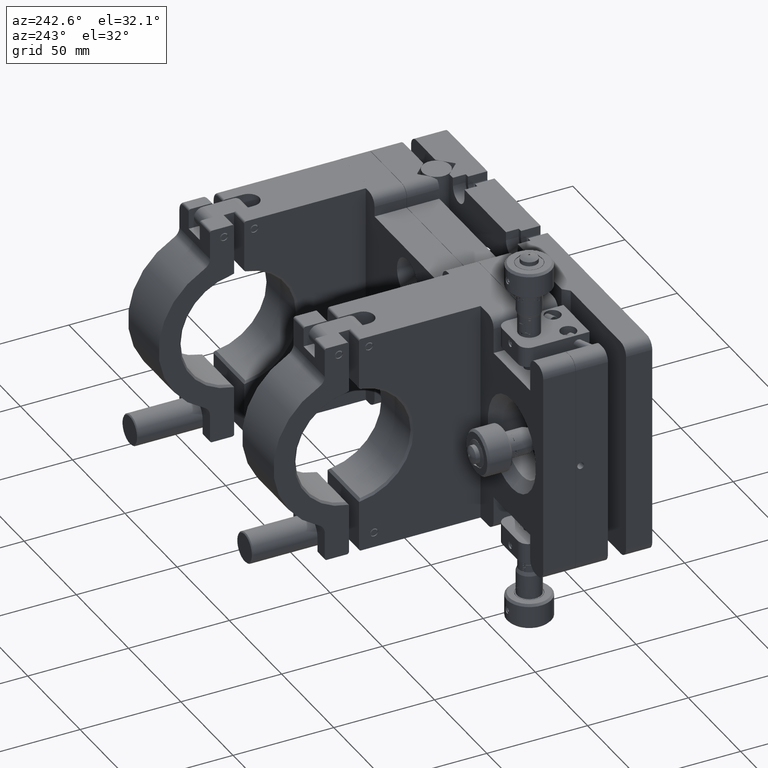
[diagram: clean part render]
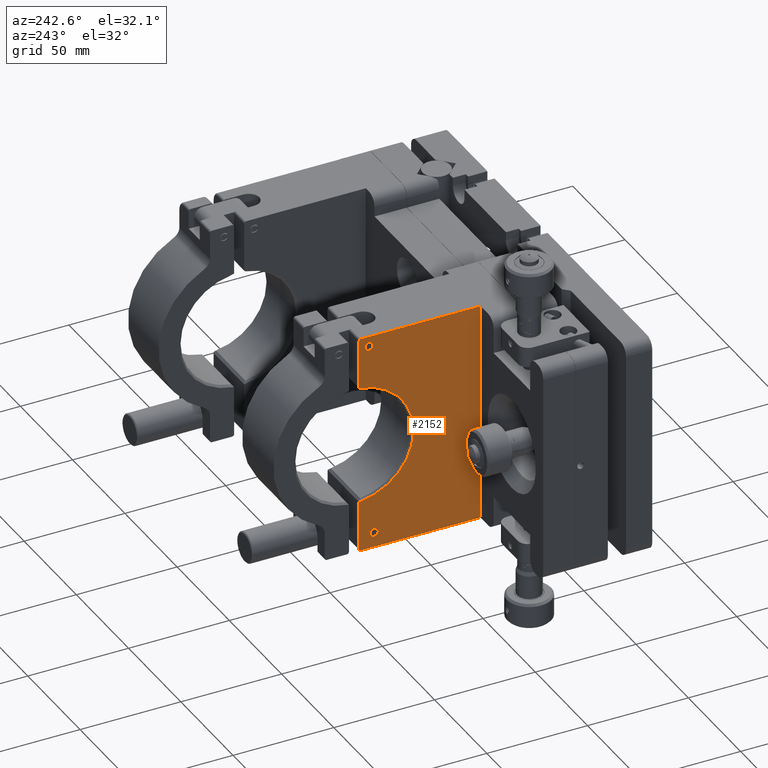
[diagram: same view with one face highlighted and labeled with its STEP entity id]
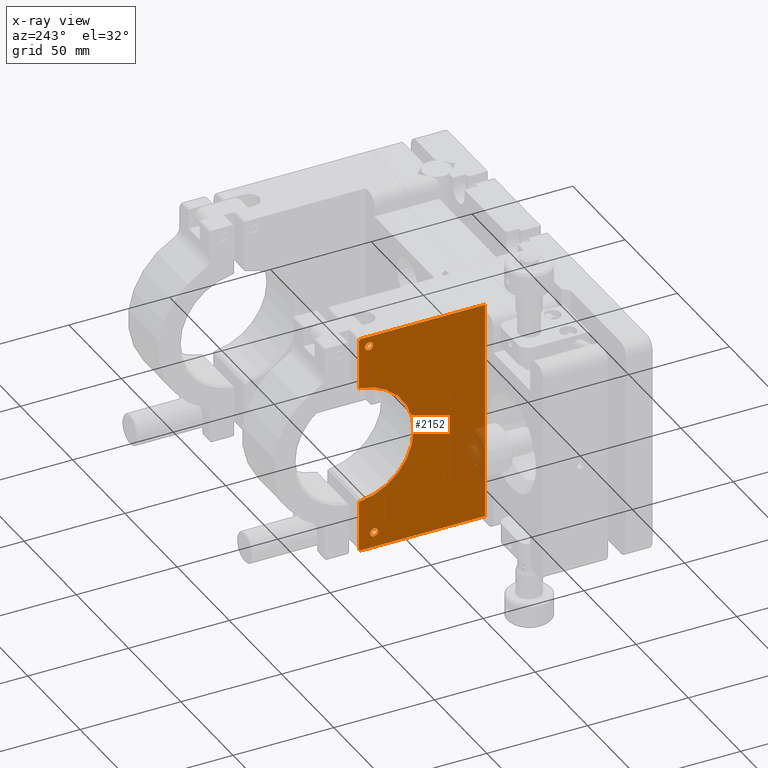
[diagram: x-ray of the same camera — body ghosted, the highlighted face saturated]
A machine part, auxiliary view. The second image highlights one B-rep face of the part: STEP entity #2152.
The next image is the same camera in x-ray: the body ghosted, the highlighted face saturated — about 3% of this face is hidden behind the body in this view.
In plain terms, the highlighted planar face has unit normal (1, 0, 0).
Its self-contained STEP definition (entity closure, byte-faithful):
#436 = AXIS2_PLACEMENT_3D ( 'NONE', #15799, #5890, #19315 ) ;
#886 = VERTEX_POINT ( 'NONE', #25975 ) ;
#1587 = CIRCLE ( 'NONE', #7932, 1.000000000000000888 ) ;
#1880 = DIRECTION ( 'NONE',  ( 0.000000000000000000, 0.000000000000000000, -1.000000000000000000 ) ) ;
#2152 = ADVANCED_FACE ( 'NONE', ( #9018, #32832, #42274 ), #35912, .F. ) ;
#2310 = CARTESIAN_POINT ( 'NONE',  ( -40.00000000000054712, 101.3999999999994657, 52.00000000000010658 ) ) ;
#2446 = LINE ( 'NONE', #16304, #26411 ) ;
#2639 = CARTESIAN_POINT ( 'NONE',  ( -40.00000000000076739, 148.8999999999996078, 55.00000000000015632 ) ) ;
#3533 = VERTEX_POINT ( 'NONE', #19980 ) ;
#3813 = EDGE_CURVE ( 'NONE', #4788, #37713, #36257, .T. ) ;
#4266 = ORIENTED_EDGE ( 'NONE', *, *, #26892, .T. ) ;
#4575 = CARTESIAN_POINT ( 'NONE',  ( -40.00000000000042633, 106.3125874125869217, -29.48669693442293038 ) ) ;
#4788 = VERTEX_POINT ( 'NONE', #9812 ) ;
#5439 = DIRECTION ( 'NONE',  ( -1.000000000000000000, -4.490509962958807891E-15, -1.741662369880707223E-15 ) ) ;
#5599 = CARTESIAN_POINT ( 'NONE',  ( -40.00000000000052580, 105.3999999999994657, 54.00000000000009948 ) ) ;
#5890 = DIRECTION ( 'NONE',  ( 1.000000000000000000, 4.490509962958807891E-15, 1.741662369880707223E-15 ) ) ;
#6103 = CARTESIAN_POINT ( 'NONE',  ( -40.00000000000042633, 106.3999999999994941, -29.59092576319358514 ) ) ;
#6132 = CARTESIAN_POINT ( 'NONE',  ( -40.00000000000057554, 106.3999999999994657, 54.00000000000009948 ) ) ;
#6235 = VERTEX_POINT ( 'NONE', #39283 ) ;
#7240 = VERTEX_POINT ( 'NONE', #6103 ) ;
#7687 = DIRECTION ( 'NONE',  ( -4.535856941398191335E-15, 1.000000000000000000, 3.406381292183831954E-16 ) ) ;
#7932 = AXIS2_PLACEMENT_3D ( 'NONE', #19598, #23350, #29523 ) ;
#8589 = LINE ( 'NONE', #19740, #34811 ) ;
#8731 = EDGE_CURVE ( 'NONE', #886, #42113, #8589, .T. ) ;
#8969 = VERTEX_POINT ( 'NONE', #35440 ) ;
#9018 = FACE_BOUND ( 'NONE', #17344, .T. ) ;
#9382 = LINE ( 'NONE', #33402, #42093 ) ;
#9447 = ORIENTED_EDGE ( 'NONE', *, *, #21938, .T. ) ;
#9812 = CARTESIAN_POINT ( 'NONE',  ( -40.00000000000052580, 106.3999999999994657, 29.59092576319353540 ) ) ;
#10051 = EDGE_CURVE ( 'NONE', #37713, #19047, #27175, .T. ) ;
#10236 = LINE ( 'NONE', #30717, #34481 ) ;
#10537 = ORIENTED_EDGE ( 'NONE', *, *, #25342, .F. ) ;
#11778 = AXIS2_PLACEMENT_3D ( 'NONE', #2639, #12769, #26203 ) ;
#12046 = CARTESIAN_POINT ( 'NONE',  ( -40.00000000000028422, 43.89999999999945857, 55.00000000000007816 ) ) ;
#12354 = EDGE_CURVE ( 'NONE', #28850, #7240, #22665, .T. ) ;
#12769 = DIRECTION ( 'NONE',  ( 1.000000000000000000, 4.490509962958807891E-15, 1.831867990631516180E-15 ) ) ;
#12868 = ORIENTED_EDGE ( 'NONE', *, *, #8731, .T. ) ;
#13160 = DIRECTION ( 'NONE',  ( 4.535856941398191335E-15, -1.000000000000000000, -3.406381292183831954E-16 ) ) ;
#14716 = DIRECTION ( 'NONE',  ( -3.469446951953598806E-15, 0.000000000000000000, 1.000000000000000000 ) ) ;
#14719 = AXIS2_PLACEMENT_3D ( 'NONE', #22697, #25347, #28688 ) ;
#15799 = CARTESIAN_POINT ( 'NONE',  ( -40.00000000000048317, 108.8999999999994799, -2.219221958471423514E-14 ) ) ;
#16304 = CARTESIAN_POINT ( 'NONE',  ( -40.00000000000063238, 106.3999999999994515, 87.26906796063464355 ) ) ;
#16487 = ORIENTED_EDGE ( 'NONE', *, *, #38610, .T. ) ;
#16612 = DIRECTION ( 'NONE',  ( -1.511100833371960192E-15, 0.6425900800958127546, -0.7662101467368185315 ) ) ;
#16621 = VERTEX_POINT ( 'NONE', #2310 ) ;
#17050 = CARTESIAN_POINT ( 'NONE',  ( -40.00000000000052580, 106.3999999999994657, 29.59092576319353896 ) ) ;
#17281 = EDGE_CURVE ( 'NONE', #19047, #7240, #10236, .T. ) ;
#17344 = EDGE_LOOP ( 'NONE', ( #4266 ) ) ;
#19019 = DIRECTION ( 'NONE',  ( -1.000000000000000000, -4.490509962958807891E-15, -1.741662369880707223E-15 ) ) ;
#19047 = VERTEX_POINT ( 'NONE', #4575 ) ;
#19315 = DIRECTION ( 'NONE',  ( 1.875376730785731014E-15, 4.688441826964327535E-16, -1.000000000000000000 ) ) ;
#19598 = CARTESIAN_POINT ( 'NONE',  ( -40.00000000000036948, 105.3999999999994941, -54.00000000000026290 ) ) ;
#19740 = CARTESIAN_POINT ( 'NONE',  ( -40.00000000000005684, 43.89999999999950120, -55.00000000000028422 ) ) ;
#19980 = CARTESIAN_POINT ( 'NONE',  ( -40.00000000000056133, 105.3999999999994657, 55.00000000000009948 ) ) ;
#21032 = CIRCLE ( 'NONE', #14719, 2.000000000000008882 ) ;
#21445 = ORIENTED_EDGE ( 'NONE', *, *, #27529, .T. ) ;
#21938 = EDGE_CURVE ( 'NONE', #3533, #26610, #41044, .T. ) ;
#22612 = AXIS2_PLACEMENT_3D ( 'NONE', #28398, #5439, #14716 ) ;
#22665 = LINE ( 'NONE', #35698, #23968 ) ;
#22697 = CARTESIAN_POINT ( 'NONE',  ( -40.00000000000035527, 98.89999999999950830, -47.50000000000026290 ) ) ;
#23350 = DIRECTION ( 'NONE',  ( -1.000000000000000000, -4.490509962958807891E-15, -1.741662369880707223E-15 ) ) ;
#23868 = EDGE_LOOP ( 'NONE', ( #36888 ) ) ;
#23968 = VECTOR ( 'NONE', #32824, 1000.000000000000000 ) ;
#24659 = ORIENTED_EDGE ( 'NONE', *, *, #3813, .T. ) ;
#25023 = ORIENTED_EDGE ( 'NONE', *, *, #10051, .T. ) ;
#25342 = EDGE_CURVE ( 'NONE', #4788, #26610, #2446, .T. ) ;
#25347 = DIRECTION ( 'NONE',  ( 1.000000000000000000, 4.490509962958807891E-15, 1.741662369880707223E-15 ) ) ;
#25439 = ORIENTED_EDGE ( 'NONE', *, *, #17281, .T. ) ;
#25881 = ORIENTED_EDGE ( 'NONE', *, *, #35001, .T. ) ;
#25975 = CARTESIAN_POINT ( 'NONE',  ( -40.00000000000033396, 105.3999999999994941, -55.00000000000026290 ) ) ;
#26203 = DIRECTION ( 'NONE',  ( 1.831867990631514603E-15, 3.517470985627626573E-16, -1.000000000000000000 ) ) ;
#26360 = CARTESIAN_POINT ( 'NONE',  ( -40.00000000000038369, 106.3999999999995225, -54.00000000000027001 ) ) ;
#26411 = VECTOR ( 'NONE', #42951, 1000.000000000000000 ) ;
#26610 = VERTEX_POINT ( 'NONE', #6132 ) ;
#26892 = EDGE_CURVE ( 'NONE', #8969, #8969, #21032, .T. ) ;
#27175 = CIRCLE ( 'NONE', #436, 29.60000000000010090 ) ;
#27218 = DIRECTION ( 'NONE',  ( 4.318292517180462569E-15, -0.6425900800958116443, -0.7662101467368194196 ) ) ;
#27529 = EDGE_CURVE ( 'NONE', #42113, #6235, #9382, .T. ) ;
#28398 = CARTESIAN_POINT ( 'NONE',  ( -40.00000000000054001, 101.3999999999994657, 50.00000000000009948 ) ) ;
#28402 = LINE ( 'NONE', #12046, #28527 ) ;
#28527 = VECTOR ( 'NONE', #7687, 1000.000000000000000 ) ;
#28688 = DIRECTION ( 'NONE',  ( 3.469446951953598806E-15, 0.000000000000000000, -1.000000000000000000 ) ) ;
#28850 = VERTEX_POINT ( 'NONE', #26360 ) ;
#29236 = CARTESIAN_POINT ( 'NONE',  ( -40.00000000000005684, 43.89999999999950120, -55.00000000000028422 ) ) ;
#29523 = DIRECTION ( 'NONE',  ( 0.000000000000000000, 0.000000000000000000, -1.000000000000000000 ) ) ;
#30717 = CARTESIAN_POINT ( 'NONE',  ( -40.00000000000042633, 106.3999999999994941, -29.59092576319358869 ) ) ;
#32824 = DIRECTION ( 'NONE',  ( -1.831867990631514997E-15, -3.517470985627626573E-16, 1.000000000000000000 ) ) ;
#32832 = FACE_BOUND ( 'NONE', #23868, .T. ) ;
#33327 = AXIS2_PLACEMENT_3D ( 'NONE', #5599, #19019, #1880 ) ;
#33402 = CARTESIAN_POINT ( 'NONE',  ( -40.00000000000005684, 43.89999999999950120, -55.00000000000028422 ) ) ;
#33551 = CARTESIAN_POINT ( 'NONE',  ( -40.00000000000051870, 106.3125874125869075, 29.48669693442288420 ) ) ;
#34481 = VECTOR ( 'NONE', #16612, 1000.000000000000000 ) ;
#34692 = VECTOR ( 'NONE', #27218, 1000.000000000000114 ) ;
#34811 = VECTOR ( 'NONE', #13160, 1000.000000000000000 ) ;
#34863 = ORIENTED_EDGE ( 'NONE', *, *, #12354, .F. ) ;
#35001 = EDGE_CURVE ( 'NONE', #6235, #3533, #28402, .T. ) ;
#35440 = CARTESIAN_POINT ( 'NONE',  ( -40.00000000000034817, 98.89999999999950830, -49.50000000000027001 ) ) ;
#35698 = CARTESIAN_POINT ( 'NONE',  ( -40.00000000000063238, 106.3999999999994515, 87.26906796063464355 ) ) ;
#35892 = EDGE_LOOP ( 'NONE', ( #10537, #24659, #25023, #25439, #34863, #16487, #12868, #21445, #25881, #9447 ) ) ;
#35912 = PLANE ( 'NONE',  #11778 ) ;
#36257 = LINE ( 'NONE', #17050, #34692 ) ;
#36274 = DIRECTION ( 'NONE',  ( -1.831867990631514997E-15, -3.517470985627626573E-16, 1.000000000000000000 ) ) ;
#36888 = ORIENTED_EDGE ( 'NONE', *, *, #42916, .F. ) ;
#37428 = CIRCLE ( 'NONE', #22612, 2.000000000000008882 ) ;
#37713 = VERTEX_POINT ( 'NONE', #33551 ) ;
#38610 = EDGE_CURVE ( 'NONE', #28850, #886, #1587, .T. ) ;
#39283 = CARTESIAN_POINT ( 'NONE',  ( -40.00000000000028422, 43.89999999999945857, 55.00000000000007816 ) ) ;
#41044 = CIRCLE ( 'NONE', #33327, 1.000000000000000888 ) ;
#42093 = VECTOR ( 'NONE', #36274, 1000.000000000000000 ) ;
#42113 = VERTEX_POINT ( 'NONE', #29236 ) ;
#42274 = FACE_OUTER_BOUND ( 'NONE', #35892, .T. ) ;
#42916 = EDGE_CURVE ( 'NONE', #16621, #16621, #37428, .T. ) ;
#42951 = DIRECTION ( 'NONE',  ( -1.831867990631514997E-15, -3.517470985627626573E-16, 1.000000000000000000 ) ) ;